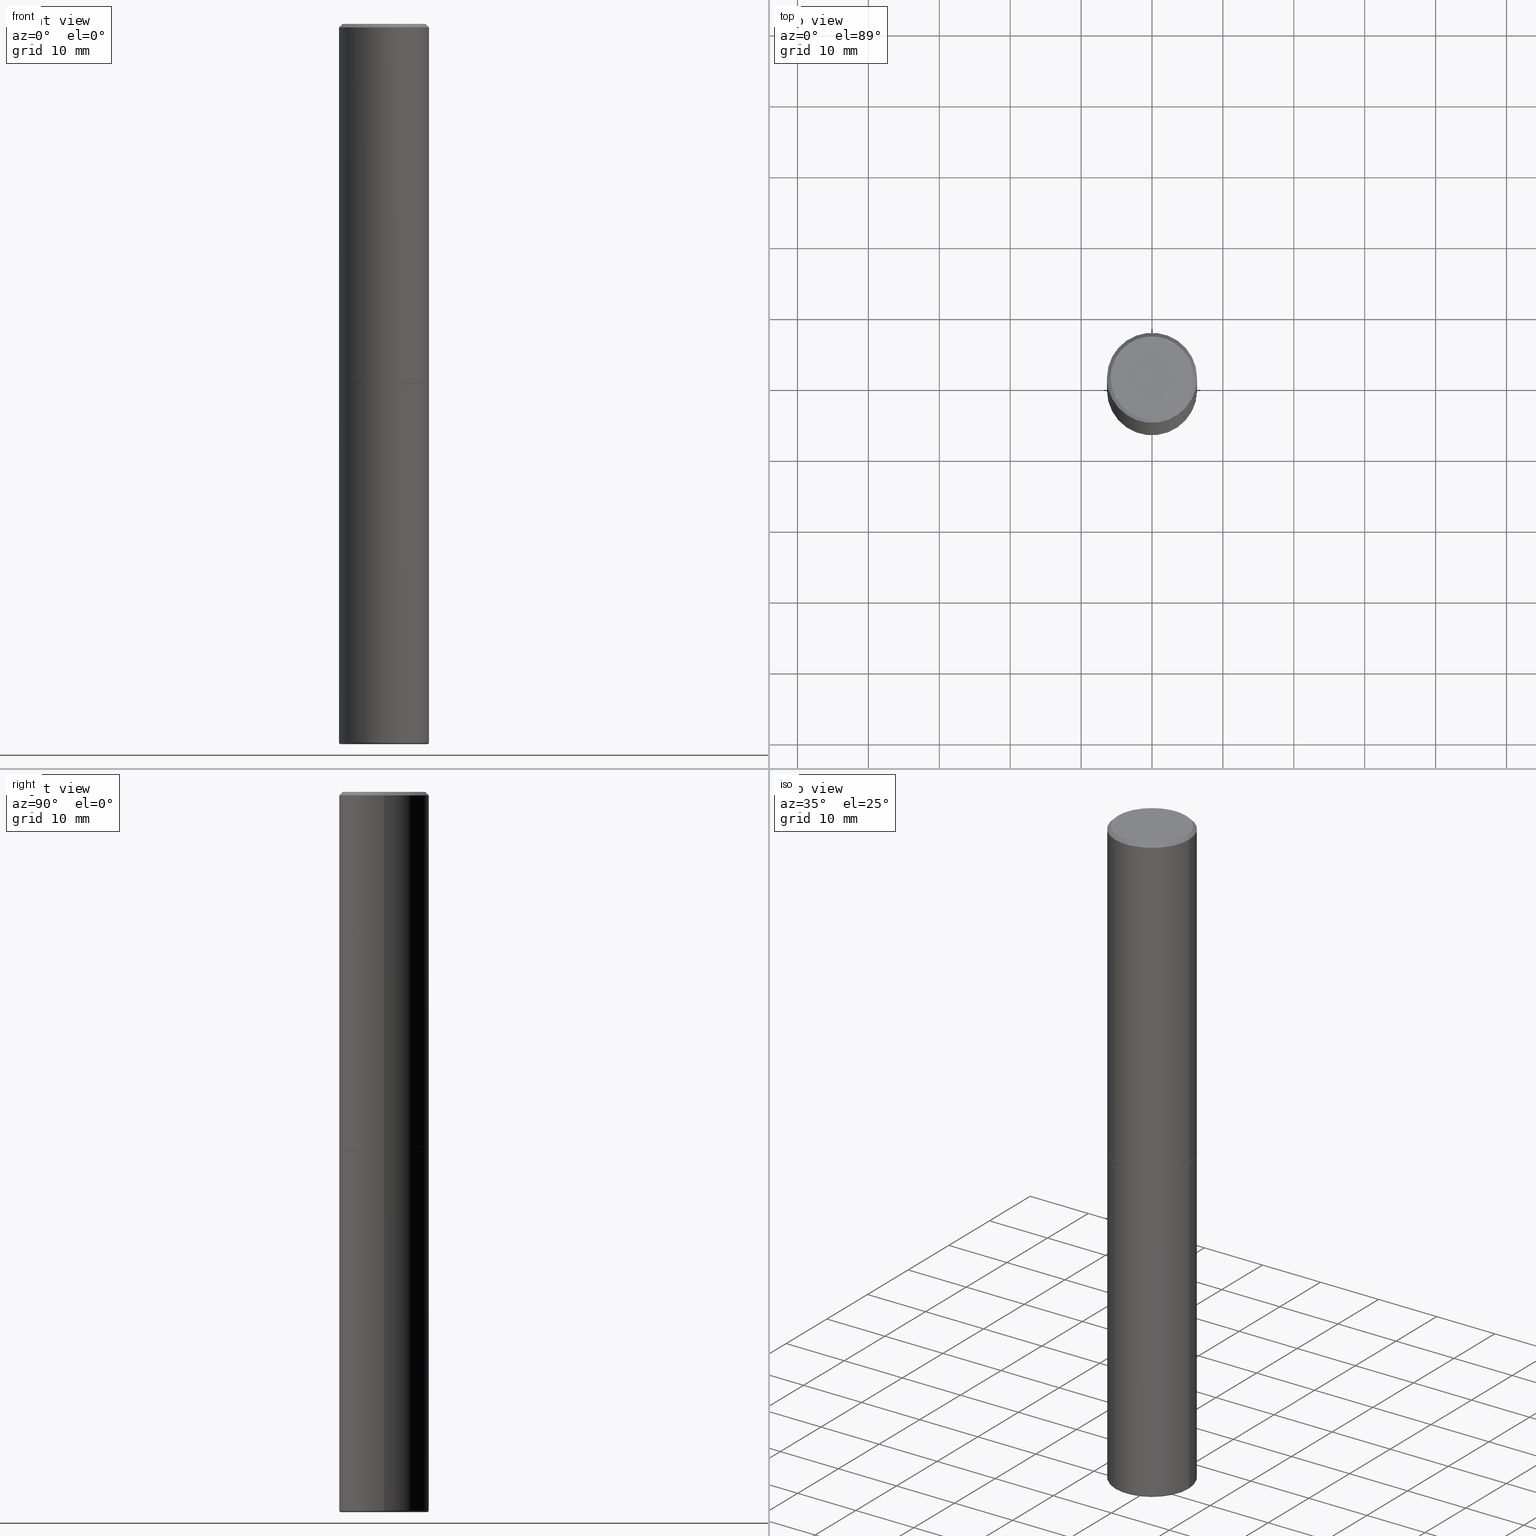
[diagram: canonical four-view strip — front | top / right | iso, engineering-drawing reading convention]
A machine part, canonical four-view strip (front | top / right | iso — engineering-drawing reading convention). The complete STEP part file that produces these views, byte-faithful:
ISO-10303-21;
HEADER;
FILE_DESCRIPTION (( 'STEP AP203' ),
    '1' );
FILE_NAME ('35706.STEP',
    '2022-11-02T20:47:37',
    ( '' ),
    ( '' ),
    'SwSTEP 2.0',
    'SolidWorks 2022',
    '' );
FILE_SCHEMA (( 'CONFIG_CONTROL_DESIGN' ));
ENDSEC;

DATA;
#1 = DIRECTION ( 'NONE',  ( 1.000000000000000000, 0.000000000000000000, 0.000000000000000000 ) ) ;
#2 = CARTESIAN_POINT ( 'NONE',  ( -0.2489999999999999714, -5.208412811295419307E-15, -2.000000000000000000 ) ) ;
#3 = CONICAL_SURFACE ( 'NONE', #29, 0.2132477346450165900, 1.535889741755009918 ) ;
#4 = CIRCLE ( 'NONE', #389, 0.2399127346450165843 ) ;
#5 = ORIENTED_EDGE ( 'NONE', *, *, #139, .F. ) ;
#6 = APPLICATION_PROTOCOL_DEFINITION ( 'international standard', 'config_control_design', 1994, #97 ) ;
#7 = CARTESIAN_POINT ( 'NONE',  ( -1.043851414335219820E-46, 1.490343170380447200E-32, 4.268512490100411279E-18 ) ) ;
#8 = CARTESIAN_POINT ( 'NONE',  ( -0.2400000000000002687, -1.222570930560901851E-14, -3.990000380769358479 ) ) ;
#9 = EDGE_LOOP ( 'NONE', ( #406, #460, #278, #391 ) ) ;
#10 = CALENDAR_DATE ( 2022, 2, 11 ) ;
#11 = DIRECTION ( 'NONE',  ( -1.000000000000000000, 6.982962677686265922E-15, -4.876176775795935793E-29 ) ) ;
#12 = PRODUCT_DEFINITION_FORMATION_WITH_SPECIFIED_SOURCE ( 'ANY', '', #263, .NOT_KNOWN. ) ;
#13 = ADVANCED_FACE ( 'NONE', ( #104 ), #88, .T. ) ;
#14 = DIRECTION ( 'NONE',  ( 7.105427357601001859E-15, 1.000000000000000000, -3.491481338843145583E-15 ) ) ;
#15 = VERTEX_POINT ( 'NONE', #248 ) ;
#16 = CALENDAR_DATE ( 2022, 2, 11 ) ;
#17 = LINE ( 'NONE', #463, #418 ) ;
#18 = ORIENTED_EDGE ( 'NONE', *, *, #337, .T. ) ;
#19 = DIRECTION ( 'NONE',  ( -2.445468806185136597E-29, 3.491481338843145583E-15, 1.000000000000000000 ) ) ;
#20 = EDGE_CURVE ( 'NONE', #15, #245, #261, .T. ) ;
#21 = ORIENTED_EDGE ( 'NONE', *, *, #366, .F. ) ;
#22 = AXIS2_PLACEMENT_3D ( 'NONE', #458, #117, #202 ) ;
#23 = LINE ( 'NONE', #100, #453 ) ;
#24 = EDGE_LOOP ( 'NONE', ( #55, #442 ) ) ;
#25 = DIRECTION ( 'NONE',  ( -2.445468806185136597E-29, 3.491481338843145583E-15, 1.000000000000000000 ) ) ;
#26 = VERTEX_POINT ( 'NONE', #210 ) ;
#27 = CARTESIAN_POINT ( 'NONE',  ( 0.2489999999999999714, -8.721720384430171040E-15, -2.000000000000000000 ) ) ;
#28 = CARTESIAN_POINT ( 'NONE',  ( 4.888492143564087591E-29, -6.979471196347447369E-15, -1.998999999999999888 ) ) ;
#29 = AXIS2_PLACEMENT_3D ( 'NONE', #474, #132, #102 ) ;
#30 = DIRECTION ( 'NONE',  ( -2.445468806185136877E-29, 3.491481338843145188E-15, 1.000000000000000000 ) ) ;
#31 = VECTOR ( 'NONE', #407, 39.37007874015748143 ) ;
#32 = EDGE_CURVE ( 'NONE', #473, #321, #428, .T. ) ;
#33 = ORIENTED_EDGE ( 'NONE', *, *, #147, .T. ) ;
#34 = DIRECTION ( 'NONE',  ( 1.000000000000000000, -6.982962677686236734E-15, 0.000000000000000000 ) ) ;
#35 = CYLINDRICAL_SURFACE ( 'NONE', #106, 0.2499999999999996669 ) ;
#36 = FACE_OUTER_BOUND ( 'NONE', #395, .T. ) ;
#37 = CIRCLE ( 'NONE', #68, 0.2499999999999993061 ) ;
#38 = APPROVAL_ROLE ( '' ) ;
#39 = CARTESIAN_POINT ( 'NONE',  ( 4.890937612370273194E-29, -6.982962677686291165E-15, -2.000000000000000000 ) ) ;
#40 = CARTESIAN_POINT ( 'NONE',  ( -0.2500000000000000000, -1.748293572161900530E-15, -1.998999999999999888 ) ) ;
#41 = LINE ( 'NONE', #422, #191 ) ;
#42 = VECTOR ( 'NONE', #368, 39.37007874015748143 ) ;
#43 = PERSON_AND_ORGANIZATION_ROLE ( 'creator' ) ;
#44 = EDGE_CURVE ( 'NONE', #201, #243, #352, .T. ) ;
#45 = PERSON_AND_ORGANIZATION ( #479, #75 ) ;
#46 = CARTESIAN_POINT ( 'NONE',  ( 0.2500000000000000555, -1.567675254085482873E-14, -3.990000380769358479 ) ) ;
#47 = CONICAL_SURFACE ( 'NONE', #110, 0.2399127346450165843, 1.562069680534929894 ) ;
#48 = CIRCLE ( 'NONE', #280, 0.2489999999999999714 ) ;
#49 = ORIENTED_EDGE ( 'NONE', *, *, #258, .T. ) ;
#50 = CALENDAR_DATE ( 2022, 2, 11 ) ;
#51 = EDGE_LOOP ( 'NONE', ( #155, #208, #171, #457 ) ) ;
#52 = APPROVAL_STATUS ( 'not_yet_approved' ) ;
#53 = DIRECTION ( 'NONE',  ( -2.445468806185136597E-29, 3.491481338843145583E-15, 1.000000000000000000 ) ) ;
#54 = APPROVAL ( #384, 'UNSPECIFIED' ) ;
#55 = ORIENTED_EDGE ( 'NONE', *, *, #148, .T. ) ;
#56 = DIRECTION ( 'NONE',  ( 1.000000000000000000, -6.982962677686265922E-15, 0.000000000000000000 ) ) ;
#57 = VERTEX_POINT ( 'NONE', #357 ) ;
#58 = ORIENTED_EDGE ( 'NONE', *, *, #224, .T. ) ;
#59 = TOROIDAL_SURFACE ( 'NONE', #481, 0.2400000000000002687, 0.009999999999999845818 ) ;
#60 = VECTOR ( 'NONE', #448, 39.37007874015748854 ) ;
#61 = CARTESIAN_POINT ( 'NONE',  ( 0.2399127346450165843, -1.561184619104461252E-14, -4.000000000000000000 ) ) ;
#62 = UNCERTAINTY_MEASURE_WITH_UNIT (LENGTH_MEASURE( 1.000000000000000082E-05 ), #264, 'distance_accuracy_value', 'NONE');
#63 = ADVANCED_FACE ( 'NONE', ( #81 ), #87, .F. ) ;
#64 = VERTEX_POINT ( 'NONE', #383 ) ;
#65 = ADVANCED_FACE ( 'NONE', ( #305 ), #59, .T. ) ;
#66 = LINE ( 'NONE', #61, #196 ) ;
#67 = ORIENTED_EDGE ( 'NONE', *, *, #377, .T. ) ;
#68 = AXIS2_PLACEMENT_3D ( 'NONE', #482, #137, #136 ) ;
#69 = DIRECTION ( 'NONE',  ( 1.000000000000000000, -6.982962677686266711E-15, 4.883557194083113462E-29 ) ) ;
#70 = VERTEX_POINT ( 'NONE', #461 ) ;
#71 = FACE_OUTER_BOUND ( 'NONE', #317, .T. ) ;
#72 = DIRECTION ( 'NONE',  ( -0.9993908270190957621, 6.856857904024556470E-15, -0.03489949670250108021 ) ) ;
#73 = CARTESIAN_POINT ( 'NONE',  ( 1.745740669421615193E-15, 0.2499999999999930056, -2.000000000000000888 ) ) ;
#74 = AXIS2_PLACEMENT_3D ( 'NONE', #425, #229, #154 ) ;
#75 = ORGANIZATION ( 'UNSPECIFIED', 'UNSPECIFIED', '' ) ;
#76 = EDGE_CURVE ( 'NONE', #435, #201, #408, .T. ) ;
#77 =( NAMED_UNIT ( * ) PLANE_ANGLE_UNIT ( ) SI_UNIT ( $, .RADIAN. ) );
#78 = DIRECTION ( 'NONE',  ( -2.445468806185136597E-29, 3.491481338843145583E-15, 1.000000000000000000 ) ) ;
#79 = CIRCLE ( 'NONE', #459, 0.2132477346450165900 ) ;
#80 = DATE_AND_TIME ( #421, #207 ) ;
#81 = FACE_OUTER_BOUND ( 'NONE', #24, .T. ) ;
#82 = ADVANCED_FACE ( 'NONE', ( #390 ), #119, .T. ) ;
#83 = CC_DESIGN_DATE_AND_TIME_ASSIGNMENT ( #116, #230, ( #358 ) ) ;
#84 = ORIENTED_EDGE ( 'NONE', *, *, #173, .F. ) ;
#85 = PERSON_AND_ORGANIZATION ( #479, #75 ) ;
#86 = APPLICATION_CONTEXT ( 'configuration controlled 3d designs of mechanical parts and assemblies' ) ;
#87 = PLANE ( 'NONE',  #438 ) ;
#88 = CONICAL_SURFACE ( 'NONE', #369, 0.2489999999999999714, 0.7853981633974141952 ) ;
#89 = CC_DESIGN_APPROVAL ( #282, ( #358 ) ) ;
#90 = EDGE_LOOP ( 'NONE', ( #306, #238, #455 ) ) ;
#91 = PERSON_AND_ORGANIZATION ( #479, #75 ) ;
#92 = EDGE_LOOP ( 'NONE', ( #402, #58, #128, #335 ) ) ;
#93 = CYLINDRICAL_SURFACE ( 'NONE', #135, 0.2499999999999996669 ) ;
#94 = ORIENTED_EDGE ( 'NONE', *, *, #199, .F. ) ;
#95 = DIRECTION ( 'NONE',  ( 1.000000000000000000, -6.982962677686269077E-15, 0.000000000000000000 ) ) ;
#96 = ORIENTED_EDGE ( 'NONE', *, *, #234, .T. ) ;
#97 = APPLICATION_CONTEXT ( 'configuration controlled 3d designs of mechanical parts and assemblies' ) ;
#98 = VERTEX_POINT ( 'NONE', #46 ) ;
#99 = EDGE_CURVE ( 'NONE', #197, #473, #41, .T. ) ;
#100 = CARTESIAN_POINT ( 'NONE',  ( 0.2500000000000000000, -1.745740669421566678E-15, 1.219044193948983948E-29 ) ) ;
#101 = ORIENTED_EDGE ( 'NONE', *, *, #427, .T. ) ;
#102 = DIRECTION ( 'NONE',  ( -1.000000000000000000, 6.982962677686265922E-15, 0.000000000000000000 ) ) ;
#103 = ADVANCED_BREP_SHAPE_REPRESENTATION ( '35706', ( #187, #190, #167 ), #340 ) ;
#104 = FACE_OUTER_BOUND ( 'NONE', #242, .T. ) ;
#105 = CARTESIAN_POINT ( 'NONE',  ( 4.890937612370302936E-31, -6.982962677686332285E-17, -0.02000000000000011838 ) ) ;
#106 = AXIS2_PLACEMENT_3D ( 'NONE', #312, #475, #274 ) ;
#107 = FACE_OUTER_BOUND ( 'NONE', #324, .T. ) ;
#108 = DIRECTION ( 'NONE',  ( 2.438088387897960049E-29, -3.491481338843145188E-15, -1.000000000000000000 ) ) ;
#109 = CARTESIAN_POINT ( 'NONE',  ( 0.2499999999999993061, -1.784954126219741456E-15, -0.02000000000000011838 ) ) ;
#110 = AXIS2_PLACEMENT_3D ( 'NONE', #443, #204, #319 ) ;
#111 = PRODUCT_DEFINITION_SHAPE ( 'NONE', 'NONE',  #358 ) ;
#112 = AXIS2_PLACEMENT_3D ( 'NONE', #492, #341, #218 ) ;
#113 = EDGE_CURVE ( 'NONE', #435, #467, #17, .T. ) ;
#114 = CARTESIAN_POINT ( 'NONE',  ( 4.888492143564087591E-29, -6.979471196347447369E-15, -1.998999999999999888 ) ) ;
#115 = ORIENTED_EDGE ( 'NONE', *, *, #258, .F. ) ;
#116 = DATE_AND_TIME ( #10, #228 ) ;
#117 = DIRECTION ( 'NONE',  ( -2.445468806185136597E-29, 3.491481338843145583E-15, 1.000000000000000000 ) ) ;
#118 = CIRCLE ( 'NONE', #353, 0.2299999999999991773 ) ;
#119 = CYLINDRICAL_SURFACE ( 'NONE', #123, 0.2500000000000000000 ) ;
#120 = COORDINATED_UNIVERSAL_TIME_OFFSET ( 5, 0, .BEHIND. ) ;
#121 = ORIENTED_EDGE ( 'NONE', *, *, #20, .T. ) ;
#122 = VECTOR ( 'NONE', #156, 39.37007874015748143 ) ;
#123 = AXIS2_PLACEMENT_3D ( 'NONE', #272, #277, #232 ) ;
#124 = CC_DESIGN_APPROVAL ( #54, ( #12 ) ) ;
#125 = VERTEX_POINT ( 'NONE', #161 ) ;
#126 = APPROVAL_ROLE ( '' ) ;
#127 = CARTESIAN_POINT ( 'NONE',  ( 9.781306159430471629E-29, -1.396511288092772933E-14, -3.999767298070359356 ) ) ;
#128 = ORIENTED_EDGE ( 'NONE', *, *, #291, .T. ) ;
#129 = FACE_OUTER_BOUND ( 'NONE', #251, .T. ) ;
#130 = EDGE_LOOP ( 'NONE', ( #5, #322, #326, #289 ) ) ;
#131 = VERTEX_POINT ( 'NONE', #432 ) ;
#132 = DIRECTION ( 'NONE',  ( 2.445468806185136597E-29, -3.491481338843145583E-15, -1.000000000000000000 ) ) ;
#133 = EDGE_CURVE ( 'NONE', #321, #473, #288, .T. ) ;
#134 = PRODUCT_RELATED_PRODUCT_CATEGORY ( 'detail', '', ( #263 ) ) ;
#135 = AXIS2_PLACEMENT_3D ( 'NONE', #241, #292, #394 ) ;
#136 = DIRECTION ( 'NONE',  ( 1.000000000000000000, -6.982962677686267499E-15, 0.000000000000000000 ) ) ;
#137 = DIRECTION ( 'NONE',  ( -2.445468806185136597E-29, 3.491481338843145583E-15, 1.000000000000000000 ) ) ;
#138 = ORIENTED_EDGE ( 'NONE', *, *, #337, .F. ) ;
#139 = EDGE_CURVE ( 'NONE', #64, #131, #226, .T. ) ;
#140 = DIRECTION ( 'NONE',  ( 1.000000000000000000, -6.982962677686262766E-15, 0.000000000000000000 ) ) ;
#141 = ADVANCED_FACE ( 'NONE', ( #157 ), #151, .F. ) ;
#142 = FACE_OUTER_BOUND ( 'NONE', #284, .T. ) ;
#143 = CONICAL_SURFACE ( 'NONE', #483, 0.2132477346450165900, 1.535889741755009918 ) ;
#144 = MECHANICAL_CONTEXT ( 'NONE', #86, 'mechanical' ) ;
#145 = DIRECTION ( 'NONE',  ( -1.000000000000000000, 6.982962677686265922E-15, -4.876176775795935793E-29 ) ) ;
#146 = CARTESIAN_POINT ( 'NONE',  ( 0.2499999999999999722, -8.725211865769014047E-15, -1.998999999999999888 ) ) ;
#147 = EDGE_CURVE ( 'NONE', #243, #467, #381, .T. ) ;
#148 = EDGE_CURVE ( 'NONE', #201, #435, #118, .T. ) ;
#149 = AXIS2_PLACEMENT_3D ( 'NONE', #367, #409, #220 ) ;
#150 = CARTESIAN_POINT ( 'NONE',  ( 9.781306159430471629E-29, -1.396511288092772933E-14, -3.999767298070359356 ) ) ;
#151 = CONICAL_SURFACE ( 'NONE', #74, 0.2399127346450165843, 1.562069680534929894 ) ;
#152 = LOCAL_TIME ( 16, 47, 37.00000000000000000, #120 ) ;
#153 = DIRECTION ( 'NONE',  ( -1.000000000000000000, 7.105427357601025525E-15, 0.000000000000000000 ) ) ;
#154 = DIRECTION ( 'NONE',  ( -1.000000000000000000, 6.982962677686262766E-15, 0.000000000000000000 ) ) ;
#155 = ORIENTED_EDGE ( 'NONE', *, *, #427, .F. ) ;
#156 = DIRECTION ( 'NONE',  ( -0.7071067811865475727, 2.468850131082257455E-15, -0.7071067811865474617 ) ) ;
#157 = FACE_OUTER_BOUND ( 'NONE', #314, .T. ) ;
#158 = EDGE_CURVE ( 'NONE', #245, #15, #468, .T. ) ;
#159 = ORIENTED_EDGE ( 'NONE', *, *, #32, .T. ) ;
#160 = SECURITY_CLASSIFICATION_LEVEL ( 'unclassified' ) ;
#161 = CARTESIAN_POINT ( 'NONE',  ( -0.2132477346450165900, -1.247601190880043386E-14, -3.999767298070359356 ) ) ;
#162 = ORIENTED_EDGE ( 'NONE', *, *, #219, .T. ) ;
#163 = CALENDAR_DATE ( 2022, 2, 11 ) ;
#164 = CARTESIAN_POINT ( 'NONE',  ( -0.2299999999999991773, 1.640996229256267194E-15, 4.268512490089056766E-18 ) ) ;
#165 = DIRECTION ( 'NONE',  ( -2.445468806185136597E-29, 3.491481338843145583E-15, 1.000000000000000000 ) ) ;
#166 = AXIS2_PLACEMENT_3D ( 'NONE', #364, #19, #95 ) ;
#167 = AXIS2_PLACEMENT_3D ( 'NONE', #379, #346, #1 ) ;
#168 = ORIENTED_EDGE ( 'NONE', *, *, #139, .T. ) ;
#169 = APPROVAL_DATE_TIME ( #198, #54 ) ;
#170 = DIRECTION ( 'NONE',  ( -2.445468806185136877E-29, 3.491481338843145188E-15, 1.000000000000000000 ) ) ;
#171 = ORIENTED_EDGE ( 'NONE', *, *, #99, .T. ) ;
#172 = ADVANCED_FACE ( 'NONE', ( #129 ), #47, .F. ) ;
#173 = EDGE_CURVE ( 'NONE', #26, #57, #66, .T. ) ;
#174 = CYLINDRICAL_SURFACE ( 'NONE', #331, 0.2500000000000000000 ) ;
#175 = DESIGN_CONTEXT ( 'detailed design', #97, 'design' ) ;
#176 = CARTESIAN_POINT ( 'NONE',  ( -1.043851414335219820E-46, 1.490343170380447200E-32, 4.268512490100411279E-18 ) ) ;
#177 = ORIENTED_EDGE ( 'NONE', *, *, #484, .F. ) ;
#178 = AXIS2_PLACEMENT_3D ( 'NONE', #441, #478, #56 ) ;
#179 = CARTESIAN_POINT ( 'NONE',  ( -0.2499999999999993061, 1.675911042644698449E-15, -0.02000000000000011838 ) ) ;
#180 = ORIENTED_EDGE ( 'NONE', *, *, #113, .T. ) ;
#181 = CARTESIAN_POINT ( 'NONE',  ( -0.2399127346450165843, -1.229062368344478385E-14, -4.000000000000000000 ) ) ;
#182 = DIRECTION ( 'NONE',  ( -2.445468806185136597E-29, 3.491481338843145583E-15, 1.000000000000000000 ) ) ;
#183 = VECTOR ( 'NONE', #214, 39.37007874015748143 ) ;
#184 = CARTESIAN_POINT ( 'NONE',  ( 0.2299999999999991773, -1.681434332853594081E-15, 4.268512490111905999E-18 ) ) ;
#185 = EDGE_CURVE ( 'NONE', #473, #467, #250, .T. ) ;
#186 = DIRECTION ( 'NONE',  ( -1.000000000000000000, 6.982962677686267499E-15, 0.000000000000000000 ) ) ;
#187 = MANIFOLD_SOLID_BREP ( 'Body-Move/Copy2[1]', #287 ) ;
#188 = CARTESIAN_POINT ( 'NONE',  ( 9.781875224740546387E-29, -1.396592535537258233E-14, -4.000000000000000000 ) ) ;
#189 = PERSON_AND_ORGANIZATION ( #479, #75 ) ;
#190 = MANIFOLD_SOLID_BREP ( 'Body-Move/Copy2[2]', #329 ) ;
#191 = VECTOR ( 'NONE', #456, 39.37007874015748854 ) ;
#192 = TOROIDAL_SURFACE ( 'NONE', #301, 0.2400000000000002687, 0.009999999999999845818 ) ;
#193 = EDGE_CURVE ( 'NONE', #57, #64, #254, .T. ) ;
#194 = ORIENTED_EDGE ( 'NONE', *, *, #219, .F. ) ;
#195 = PERSON_AND_ORGANIZATION_ROLE ( 'classification_officer' ) ;
#196 = VECTOR ( 'NONE', #439, 39.37007874015748854 ) ;
#197 = VERTEX_POINT ( 'NONE', #27 ) ;
#198 = DATE_AND_TIME ( #16, #152 ) ;
#199 = EDGE_CURVE ( 'NONE', #98, #131, #206, .T. ) ;
#200 = CARTESIAN_POINT ( 'NONE',  ( -0.2499999999999993061, 1.675911042644698449E-15, -0.02000000000000011838 ) ) ;
#201 = VERTEX_POINT ( 'NONE', #164 ) ;
#202 = DIRECTION ( 'NONE',  ( 1.000000000000000000, -6.982962677686267499E-15, 0.000000000000000000 ) ) ;
#203 = ORIENTED_EDGE ( 'NONE', *, *, #148, .F. ) ;
#204 = DIRECTION ( 'NONE',  ( 2.445468806185136597E-29, -3.491481338843145583E-15, -1.000000000000000000 ) ) ;
#205 = DIRECTION ( 'NONE',  ( 1.000000000000000000, -6.982962677686267499E-15, 0.000000000000000000 ) ) ;
#206 = CIRCLE ( 'NONE', #166, 0.2500000000000000555 ) ;
#207 = LOCAL_TIME ( 16, 47, 37.00000000000000000, #392 ) ;
#208 = ORIENTED_EDGE ( 'NONE', *, *, #400, .T. ) ;
#209 = DIRECTION ( 'NONE',  ( 1.000000000000000000, -6.982962677686267499E-15, 4.876225828469326258E-29 ) ) ;
#210 = CARTESIAN_POINT ( 'NONE',  ( 0.2132477346450165900, -1.542809853748918062E-14, -3.999767298070359356 ) ) ;
#211 = LINE ( 'NONE', #471, #183 ) ;
#212 = ORIENTED_EDGE ( 'NONE', *, *, #275, .T. ) ;
#213 = EDGE_CURVE ( 'NONE', #70, #26, #211, .T. ) ;
#214 = DIRECTION ( 'NONE',  ( 0.9993908270190957621, -6.978169709227541488E-15, -0.03489949670250108021 ) ) ;
#215 = ORIENTED_EDGE ( 'NONE', *, *, #185, .F. ) ;
#216 = AXIS2_PLACEMENT_3D ( 'NONE', #28, #165, #205 ) ;
#217 = APPROVAL_PERSON_ORGANIZATION ( #271, #54, #240 ) ;
#218 = DIRECTION ( 'NONE',  ( 1.000000000000000000, -6.982962677686265922E-15, 4.876176775795935793E-29 ) ) ;
#219 = EDGE_CURVE ( 'NONE', #321, #243, #290, .T. ) ;
#220 = DIRECTION ( 'NONE',  ( 1.000000000000000000, -6.982962677686267499E-15, 0.000000000000000000 ) ) ;
#221 = FACE_OUTER_BOUND ( 'NONE', #246, .T. ) ;
#222 =( NAMED_UNIT ( * ) SI_UNIT ( $, .STERADIAN. ) SOLID_ANGLE_UNIT ( ) );
#223 = DIRECTION ( 'NONE',  ( 1.000000000000000000, -6.982962677686267499E-15, 0.000000000000000000 ) ) ;
#224 = EDGE_CURVE ( 'NONE', #131, #98, #445, .T. ) ;
#225 = CC_DESIGN_PERSON_AND_ORGANIZATION_ASSIGNMENT ( #85, #276, ( #12 ) ) ;
#226 = CIRCLE ( 'NONE', #370, 0.009999999999999859696 ) ;
#227 = PLANE ( 'NONE',  #300 ) ;
#228 = LOCAL_TIME ( 16, 47, 37.00000000000000000, #356 ) ;
#229 = DIRECTION ( 'NONE',  ( 2.445468806185136597E-29, -3.491481338843145583E-15, -1.000000000000000000 ) ) ;
#230 = DATE_TIME_ROLE ( 'creation_date' ) ;
#231 = DIRECTION ( 'NONE',  ( -2.445468806185136597E-29, 3.491481338843145583E-15, 1.000000000000000000 ) ) ;
#232 = DIRECTION ( 'NONE',  ( 1.000000000000000000, -6.982962677686266711E-15, 4.876176775795935793E-29 ) ) ;
#233 = ORIENTED_EDGE ( 'NONE', *, *, #147, .F. ) ;
#234 = EDGE_CURVE ( 'NONE', #125, #26, #79, .T. ) ;
#235 = CC_DESIGN_PERSON_AND_ORGANIZATION_ASSIGNMENT ( #91, #195, ( #488 ) ) ;
#236 = APPROVAL_DATE_TIME ( #80, #282 ) ;
#237 = CONICAL_SURFACE ( 'NONE', #420, 0.2499999999999993061, 0.7853981633974483900 ) ;
#238 = ORIENTED_EDGE ( 'NONE', *, *, #366, .T. ) ;
#239 = CARTESIAN_POINT ( 'NONE',  ( 9.757421467838283463E-29, -1.393101187143326047E-14, -3.990000380769358479 ) ) ;
#240 = APPROVAL_ROLE ( '' ) ;
#241 = CARTESIAN_POINT ( 'NONE',  ( 0.000000000000000000, 0.000000000000000000, 0.000000000000000000 ) ) ;
#242 = EDGE_LOOP ( 'NONE', ( #67, #101, #345, #293 ) ) ;
#243 = VERTEX_POINT ( 'NONE', #179 ) ;
#244 = DIRECTION ( 'NONE',  ( 1.000000000000000000, -6.982962677686269077E-15, 0.000000000000000000 ) ) ;
#245 = VERTEX_POINT ( 'NONE', #403 ) ;
#246 = EDGE_LOOP ( 'NONE', ( #21, #359, #373 ) ) ;
#247 = DIRECTION ( 'NONE',  ( -2.445468806185136597E-29, 3.491481338843145583E-15, 1.000000000000000000 ) ) ;
#248 = CARTESIAN_POINT ( 'NONE',  ( 0.2499999999999999722, -8.728703347107857054E-15, -2.000000000000000000 ) ) ;
#249 = ADVANCED_FACE ( 'NONE', ( #397 ), #174, .T. ) ;
#250 = LINE ( 'NONE', #327, #386 ) ;
#251 = EDGE_LOOP ( 'NONE', ( #96, #472, #177, #138 ) ) ;
#252 = CARTESIAN_POINT ( 'NONE',  ( -0.2132477346450165900, -1.247601190880043386E-14, -3.999767298070359356 ) ) ;
#253 = DIRECTION ( 'NONE',  ( -2.445468806185136597E-29, 3.491481338843145583E-15, 1.000000000000000000 ) ) ;
#254 = CIRCLE ( 'NONE', #362, 0.2399127346450165843 ) ;
#255 = CIRCLE ( 'NONE', #410, 0.2489999999999999714 ) ;
#256 = DIRECTION ( 'NONE',  ( 2.445468806185136597E-29, -3.491481338843145583E-15, -1.000000000000000000 ) ) ;
#257 = DIRECTION ( 'NONE',  ( -2.445468806185136597E-29, 3.491481338843145583E-15, 1.000000000000000000 ) ) ;
#258 = EDGE_CURVE ( 'NONE', #467, #243, #37, .T. ) ;
#259 = APPROVAL ( #52, 'UNSPECIFIED' ) ;
#260 = CARTESIAN_POINT ( 'NONE',  ( 0.2400000000000002687, -1.560692291407796543E-14, -3.990000380769358479 ) ) ;
#261 = CIRCLE ( 'NONE', #149, 0.2499999999999999722 ) ;
#262 = AXIS2_PLACEMENT_3D ( 'NONE', #239, #247, #244 ) ;
#263 = PRODUCT ( '35706', '35706', '', ( #144 ) ) ;
#264 =( CONVERSION_BASED_UNIT ( 'INCH', #451 ) LENGTH_UNIT ( ) NAMED_UNIT ( #447 ) );
#265 = CARTESIAN_POINT ( 'NONE',  ( 4.890937612370273194E-29, -6.982962677686291165E-15, -2.000000000000000000 ) ) ;
#266 = ORIENTED_EDGE ( 'NONE', *, *, #76, .F. ) ;
#267 = EDGE_LOOP ( 'NONE', ( #159, #162, #115, #215 ) ) ;
#268 = PERSON_AND_ORGANIZATION_ROLE ( 'creator' ) ;
#269 = LOCAL_TIME ( 16, 47, 37.00000000000000000, #387 ) ;
#270 = DIRECTION ( 'NONE',  ( -2.445468806185136597E-29, 3.491481338843145583E-15, 1.000000000000000000 ) ) ;
#271 = PERSON_AND_ORGANIZATION ( #479, #75 ) ;
#272 = CARTESIAN_POINT ( 'NONE',  ( 0.000000000000000000, 0.000000000000000000, 0.000000000000000000 ) ) ;
#273 = ADVANCED_FACE ( 'NONE', ( #323 ), #93, .T. ) ;
#274 = DIRECTION ( 'NONE',  ( 1.000000000000000000, -6.982962677686266711E-15, 4.876176775795935793E-29 ) ) ;
#275 = EDGE_CURVE ( 'NONE', #26, #125, #440, .T. ) ;
#276 = PERSON_AND_ORGANIZATION_ROLE ( 'design_supplier' ) ;
#277 = DIRECTION ( 'NONE',  ( -2.445468806185136597E-29, 3.491481338843145583E-15, 1.000000000000000000 ) ) ;
#278 = ORIENTED_EDGE ( 'NONE', *, *, #20, .F. ) ;
#279 = VECTOR ( 'NONE', #72, 39.37007874015748143 ) ;
#280 = AXIS2_PLACEMENT_3D ( 'NONE', #39, #257, #296 ) ;
#281 = ORIENTED_EDGE ( 'NONE', *, *, #185, .T. ) ;
#282 = APPROVAL ( #297, 'UNSPECIFIED' ) ;
#283 = DIRECTION ( 'NONE',  ( -2.445468806185136597E-29, 3.491481338843145583E-15, 1.000000000000000000 ) ) ;
#284 = EDGE_LOOP ( 'NONE', ( #121, #477 ) ) ;
#285 = CARTESIAN_POINT ( 'NONE',  ( 0.000000000000000000, 0.000000000000000000, 0.000000000000000000 ) ) ;
#286 = DIRECTION ( 'NONE',  ( 1.000000000000000000, -6.982962677686267499E-15, 0.000000000000000000 ) ) ;
#287 = CLOSED_SHELL ( 'NONE', ( #172, #423, #249, #388, #308, #328, #82, #65, #141 ) ) ;
#288 = CIRCLE ( 'NONE', #295, 0.2499999999999999722 ) ;
#289 = ORIENTED_EDGE ( 'NONE', *, *, #224, .F. ) ;
#290 = LINE ( 'NONE', #334, #42 ) ;
#291 = EDGE_CURVE ( 'NONE', #98, #15, #23, .T. ) ;
#292 = DIRECTION ( 'NONE',  ( -2.445468806185136597E-29, 3.491481338843145583E-15, 1.000000000000000000 ) ) ;
#293 = ORIENTED_EDGE ( 'NONE', *, *, #99, .F. ) ;
#294 = FACE_OUTER_BOUND ( 'NONE', #476, .T. ) ;
#295 = AXIS2_PLACEMENT_3D ( 'NONE', #114, #270, #466 ) ;
#296 = DIRECTION ( 'NONE',  ( 1.000000000000000000, -6.982962677686267499E-15, 0.000000000000000000 ) ) ;
#297 = APPROVAL_STATUS ( 'not_yet_approved' ) ;
#298 = CARTESIAN_POINT ( 'NONE',  ( -0.2489999999999999714, -5.213711265643641709E-15, -2.000000000000000000 ) ) ;
#299 = FACE_OUTER_BOUND ( 'NONE', #51, .T. ) ;
#300 = AXIS2_PLACEMENT_3D ( 'NONE', #73, #108, #145 ) ;
#301 = AXIS2_PLACEMENT_3D ( 'NONE', #336, #78, #69 ) ;
#302 = APPLICATION_PROTOCOL_DEFINITION ( 'international standard', 'config_control_design', 1994, #86 ) ;
#303 = LINE ( 'NONE', #416, #31 ) ;
#304 =( LENGTH_UNIT ( ) NAMED_UNIT ( * ) SI_UNIT ( $, .METRE. ) );
#305 = FACE_OUTER_BOUND ( 'NONE', #130, .T. ) ;
#306 = ORIENTED_EDGE ( 'NONE', *, *, #213, .F. ) ;
#307 = PERSON_AND_ORGANIZATION ( #479, #75 ) ;
#308 = ADVANCED_FACE ( 'NONE', ( #393 ), #3, .F. ) ;
#309 = CC_DESIGN_PERSON_AND_ORGANIZATION_ASSIGNMENT ( #318, #43, ( #12 ) ) ;
#310 = DIRECTION ( 'NONE',  ( 2.438088387897960049E-29, -3.491481338843145188E-15, -1.000000000000000000 ) ) ;
#311 = DATE_AND_TIME ( #50, #269 ) ;
#312 = CARTESIAN_POINT ( 'NONE',  ( 0.000000000000000000, 0.000000000000000000, 0.000000000000000000 ) ) ;
#313 = CARTESIAN_POINT ( 'NONE',  ( 1.606081415867835348E-15, 0.2299999999999991773, -8.009064516888704189E-16 ) ) ;
#314 = EDGE_LOOP ( 'NONE', ( #84, #212, #18, #426 ) ) ;
#315 = DATE_TIME_ROLE ( 'classification_date' ) ;
#316 = DIRECTION ( 'NONE',  ( 0.7071067811865475727, -7.319954787623256045E-15, -0.7071067811865474617 ) ) ;
#317 = EDGE_LOOP ( 'NONE', ( #194, #433, #281, #233 ) ) ;
#318 = PERSON_AND_ORGANIZATION ( #479, #75 ) ;
#319 = DIRECTION ( 'NONE',  ( -1.000000000000000000, 6.982962677686262766E-15, 0.000000000000000000 ) ) ;
#320 = CIRCLE ( 'NONE', #454, 0.009999999999999859696 ) ;
#321 = VERTEX_POINT ( 'NONE', #40 ) ;
#322 = ORIENTED_EDGE ( 'NONE', *, *, #484, .T. ) ;
#323 = FACE_OUTER_BOUND ( 'NONE', #267, .T. ) ;
#324 = EDGE_LOOP ( 'NONE', ( #371, #486 ) ) ;
#325 = DIRECTION ( 'NONE',  ( -2.445468806185136597E-29, 3.491481338843145583E-15, 1.000000000000000000 ) ) ;
#326 = ORIENTED_EDGE ( 'NONE', *, *, #464, .T. ) ;
#327 = CARTESIAN_POINT ( 'NONE',  ( 0.2499999999999996669, -1.745740669421564311E-15, 1.219044193948982267E-29 ) ) ;
#328 = ADVANCED_FACE ( 'NONE', ( #142 ), #227, .F. ) ;
#329 = CLOSED_SHELL ( 'NONE', ( #13, #273, #489, #415, #490, #350, #450, #63 ) ) ;
#330 = CC_DESIGN_DATE_AND_TIME_ASSIGNMENT ( #469, #315, ( #488 ) ) ;
#331 = AXIS2_PLACEMENT_3D ( 'NONE', #285, #325, #485 ) ;
#332 = EDGE_LOOP ( 'NONE', ( #437, #168, #94, #396 ) ) ;
#333 = AXIS2_PLACEMENT_3D ( 'NONE', #105, #343, #186 ) ;
#334 = CARTESIAN_POINT ( 'NONE',  ( -0.2499999999999996669, 1.776356839400248098E-15, -1.229733772563724764E-29 ) ) ;
#335 = ORIENTED_EDGE ( 'NONE', *, *, #158, .F. ) ;
#336 = CARTESIAN_POINT ( 'NONE',  ( 9.757421467838283463E-29, -1.393101187143326047E-14, -3.990000380769358479 ) ) ;
#337 = EDGE_CURVE ( 'NONE', #125, #64, #376, .T. ) ;
#338 = DIRECTION ( 'NONE',  ( -2.445468806185136597E-29, 3.491481338843145583E-15, 1.000000000000000000 ) ) ;
#339 = AXIS2_PLACEMENT_3D ( 'NONE', #7, #231, #424 ) ;
#340 =( GEOMETRIC_REPRESENTATION_CONTEXT ( 3 ) GLOBAL_UNCERTAINTY_ASSIGNED_CONTEXT ( ( #62 ) ) GLOBAL_UNIT_ASSIGNED_CONTEXT ( ( #264, #77, #222 ) ) REPRESENTATION_CONTEXT ( 'NONE', 'WORKASPACE' ) );
#341 = DIRECTION ( 'NONE',  ( -2.438088387897960049E-29, 3.491481338843145188E-15, 1.000000000000000000 ) ) ;
#342 = PERSON_AND_ORGANIZATION ( #479, #75 ) ;
#343 = DIRECTION ( 'NONE',  ( 2.445468806185136597E-29, -3.491481338843145583E-15, -1.000000000000000000 ) ) ;
#344 = CC_DESIGN_PERSON_AND_ORGANIZATION_ASSIGNMENT ( #189, #349, ( #263 ) ) ;
#345 = ORIENTED_EDGE ( 'NONE', *, *, #32, .F. ) ;
#346 = DIRECTION ( 'NONE',  ( 0.000000000000000000, 0.000000000000000000, 1.000000000000000000 ) ) ;
#347 = DIRECTION ( 'NONE',  ( -0.9999619230641714207, 6.952228252019186602E-15, -0.008726535498369011531 ) ) ;
#348 = APPROVAL_PERSON_ORGANIZATION ( #342, #282, #38 ) ;
#349 = PERSON_AND_ORGANIZATION_ROLE ( 'design_owner' ) ;
#350 = ADVANCED_FACE ( 'NONE', ( #299 ), #363, .T. ) ;
#351 = APPROVAL_DATE_TIME ( #311, #259 ) ;
#352 = LINE ( 'NONE', #200, #122 ) ;
#353 = AXIS2_PLACEMENT_3D ( 'NONE', #176, #25, #209 ) ;
#354 = CONICAL_SURFACE ( 'NONE', #333, 0.2499999999999993061, 0.7853981633974483900 ) ;
#355 = DIRECTION ( 'NONE',  ( -2.445468806185136597E-29, 3.491481338843145583E-15, 1.000000000000000000 ) ) ;
#356 = COORDINATED_UNIVERSAL_TIME_OFFSET ( 5, 0, .BEHIND. ) ;
#357 = CARTESIAN_POINT ( 'NONE',  ( 0.2399127346450165843, -1.564122702730038081E-14, -4.000000000000000000 ) ) ;
#358 = PRODUCT_DEFINITION ( 'UNKNOWN', '', #12, #175 ) ;
#359 = ORIENTED_EDGE ( 'NONE', *, *, #213, .T. ) ;
#360 = CARTESIAN_POINT ( 'NONE',  ( 4.890937612370273194E-29, -6.982962677686291165E-15, -2.000000000000000000 ) ) ;
#361 = DIRECTION ( 'NONE',  ( 1.000000000000000000, -6.982962677686262766E-15, 0.000000000000000000 ) ) ;
#362 = AXIS2_PLACEMENT_3D ( 'NONE', #405, #53, #361 ) ;
#363 = CONICAL_SURFACE ( 'NONE', #470, 0.2489999999999999714, 0.7853981633974141952 ) ;
#364 = CARTESIAN_POINT ( 'NONE',  ( 9.757421467838283463E-29, -1.393101187143326047E-14, -3.990000380769358479 ) ) ;
#365 = VERTEX_POINT ( 'NONE', #2 ) ;
#366 = EDGE_CURVE ( 'NONE', #70, #125, #452, .T. ) ;
#367 = CARTESIAN_POINT ( 'NONE',  ( 4.890937612370273194E-29, -6.982962677686291165E-15, -2.000000000000000000 ) ) ;
#368 = DIRECTION ( 'NONE',  ( -2.445468806185136877E-29, 3.491481338843145188E-15, 1.000000000000000000 ) ) ;
#369 = AXIS2_PLACEMENT_3D ( 'NONE', #399, #253, #480 ) ;
#370 = AXIS2_PLACEMENT_3D ( 'NONE', #8, #14, #153 ) ;
#371 = ORIENTED_EDGE ( 'NONE', *, *, #377, .F. ) ;
#372 = LINE ( 'NONE', #298, #60 ) ;
#373 = ORIENTED_EDGE ( 'NONE', *, *, #234, .F. ) ;
#374 = CARTESIAN_POINT ( 'NONE',  ( 4.890937612370273194E-29, -6.982962677686291165E-15, -2.000000000000000000 ) ) ;
#375 = DIRECTION ( 'NONE',  ( -1.000000000000000000, 6.982962677686265922E-15, 0.000000000000000000 ) ) ;
#376 = LINE ( 'NONE', #181, #429 ) ;
#377 = EDGE_CURVE ( 'NONE', #197, #365, #48, .T. ) ;
#378 = FACE_OUTER_BOUND ( 'NONE', #332, .T. ) ;
#379 = CARTESIAN_POINT ( 'NONE',  ( 0.000000000000000000, 0.000000000000000000, 0.000000000000000000 ) ) ;
#380 = CARTESIAN_POINT ( 'NONE',  ( 9.757421467838283463E-29, -1.393101187143326047E-14, -3.990000380769358479 ) ) ;
#381 = CIRCLE ( 'NONE', #22, 0.2499999999999993061 ) ;
#382 = APPROVAL_PERSON_ORGANIZATION ( #45, #259, #126 ) ;
#383 = CARTESIAN_POINT ( 'NONE',  ( -0.2399127346450165843, -1.220794893961101042E-14, -4.000000000000000000 ) ) ;
#384 = APPROVAL_STATUS ( 'not_yet_approved' ) ;
#385 = DIRECTION ( 'NONE',  ( 1.000000000000000000, -6.982962677686266711E-15, 4.883557194083113462E-29 ) ) ;
#386 = VECTOR ( 'NONE', #30, 39.37007874015748143 ) ;
#387 = COORDINATED_UNIVERSAL_TIME_OFFSET ( 5, 0, .BEHIND. ) ;
#388 = ADVANCED_FACE ( 'NONE', ( #221 ), #143, .F. ) ;
#389 = AXIS2_PLACEMENT_3D ( 'NONE', #188, #487, #140 ) ;
#390 = FACE_OUTER_BOUND ( 'NONE', #92, .T. ) ;
#391 = ORIENTED_EDGE ( 'NONE', *, *, #291, .F. ) ;
#392 = COORDINATED_UNIVERSAL_TIME_OFFSET ( 5, 0, .BEHIND. ) ;
#393 = FACE_OUTER_BOUND ( 'NONE', #90, .T. ) ;
#394 = DIRECTION ( 'NONE',  ( 1.000000000000000000, -6.982962677686266711E-15, 4.876176775795935793E-29 ) ) ;
#395 = EDGE_LOOP ( 'NONE', ( #404, #203, #419, #33 ) ) ;
#396 = ORIENTED_EDGE ( 'NONE', *, *, #464, .F. ) ;
#397 = FACE_OUTER_BOUND ( 'NONE', #9, .T. ) ;
#398 = AXIS2_PLACEMENT_3D ( 'NONE', #360, #436, #286 ) ;
#399 = CARTESIAN_POINT ( 'NONE',  ( 4.890937612370273194E-29, -6.982962677686291165E-15, -2.000000000000000000 ) ) ;
#400 = EDGE_CURVE ( 'NONE', #365, #197, #255, .T. ) ;
#401 = CC_DESIGN_PERSON_AND_ORGANIZATION_ASSIGNMENT ( #307, #268, ( #358 ) ) ;
#402 = ORIENTED_EDGE ( 'NONE', *, *, #417, .F. ) ;
#403 = CARTESIAN_POINT ( 'NONE',  ( -0.2499999999999999722, -8.680630435159524960E-15, -2.000000000000000000 ) ) ;
#404 = ORIENTED_EDGE ( 'NONE', *, *, #113, .F. ) ;
#405 = CARTESIAN_POINT ( 'NONE',  ( 9.781875224740546387E-29, -1.396592535537258233E-14, -4.000000000000000000 ) ) ;
#406 = ORIENTED_EDGE ( 'NONE', *, *, #199, .T. ) ;
#407 = DIRECTION ( 'NONE',  ( -2.445468806185136877E-29, 3.491481338843145188E-15, 1.000000000000000000 ) ) ;
#408 = CIRCLE ( 'NONE', #339, 0.2299999999999991773 ) ;
#409 = DIRECTION ( 'NONE',  ( -2.445468806185136597E-29, 3.491481338843145583E-15, 1.000000000000000000 ) ) ;
#410 = AXIS2_PLACEMENT_3D ( 'NONE', #374, #182, #412 ) ;
#411 = DIRECTION ( 'NONE',  ( -1.000000000000000000, 6.982962677686267499E-15, 0.000000000000000000 ) ) ;
#412 = DIRECTION ( 'NONE',  ( 1.000000000000000000, -6.982962677686267499E-15, 0.000000000000000000 ) ) ;
#413 = DIRECTION ( 'NONE',  ( -6.982962677686266711E-15, -1.000000000000000000, 3.491481338843145583E-15 ) ) ;
#414 = CC_DESIGN_APPROVAL ( #259, ( #488 ) ) ;
#415 = ADVANCED_FACE ( 'NONE', ( #36 ), #354, .T. ) ;
#416 = CARTESIAN_POINT ( 'NONE',  ( -0.2500000000000000000, 1.776356839400250465E-15, -1.229733772563726445E-29 ) ) ;
#417 = EDGE_CURVE ( 'NONE', #131, #245, #303, .T. ) ;
#418 = VECTOR ( 'NONE', #316, 39.37007874015748143 ) ;
#419 = ORIENTED_EDGE ( 'NONE', *, *, #44, .T. ) ;
#420 = AXIS2_PLACEMENT_3D ( 'NONE', #444, #256, #411 ) ;
#421 = CALENDAR_DATE ( 2022, 2, 11 ) ;
#422 = CARTESIAN_POINT ( 'NONE',  ( 0.2489999999999999714, -8.721720384430171040E-15, -2.000000000000000000 ) ) ;
#423 = ADVANCED_FACE ( 'NONE', ( #378 ), #192, .T. ) ;
#424 = DIRECTION ( 'NONE',  ( 1.000000000000000000, -6.982962677686267499E-15, 4.876225828469326258E-29 ) ) ;
#425 = CARTESIAN_POINT ( 'NONE',  ( 9.781875224740546387E-29, -1.396592535537258233E-14, -4.000000000000000000 ) ) ;
#426 = ORIENTED_EDGE ( 'NONE', *, *, #193, .F. ) ;
#427 = EDGE_CURVE ( 'NONE', #365, #321, #372, .T. ) ;
#428 = CIRCLE ( 'NONE', #216, 0.2499999999999999722 ) ;
#429 = VECTOR ( 'NONE', #347, 39.37007874015748854 ) ;
#430 = SHAPE_DEFINITION_REPRESENTATION ( #111, #103 ) ;
#431 = LOCAL_TIME ( 16, 47, 37.00000000000000000, #462 ) ;
#432 = CARTESIAN_POINT ( 'NONE',  ( -0.2500000000000000555, -8.680630435159524960E-15, -3.990000380769358479 ) ) ;
#433 = ORIENTED_EDGE ( 'NONE', *, *, #133, .T. ) ;
#434 = DIRECTION ( 'NONE',  ( 1.000000000000000000, -6.982962677686265922E-15, 0.000000000000000000 ) ) ;
#435 = VERTEX_POINT ( 'NONE', #184 ) ;
#436 = DIRECTION ( 'NONE',  ( -2.445468806185136597E-29, 3.491481338843145583E-15, 1.000000000000000000 ) ) ;
#437 = ORIENTED_EDGE ( 'NONE', *, *, #193, .T. ) ;
#438 = AXIS2_PLACEMENT_3D ( 'NONE', #313, #310, #11 ) ;
#439 = DIRECTION ( 'NONE',  ( 0.9999619230641714207, -6.890705306874825328E-15, -0.008726535498369011531 ) ) ;
#440 = CIRCLE ( 'NONE', #178, 0.2132477346450165900 ) ;
#441 = CARTESIAN_POINT ( 'NONE',  ( 9.781306159430471629E-29, -1.396511288092772933E-14, -3.999767298070359356 ) ) ;
#442 = ORIENTED_EDGE ( 'NONE', *, *, #76, .T. ) ;
#443 = CARTESIAN_POINT ( 'NONE',  ( 9.781875224740546387E-29, -1.396592535537258233E-14, -4.000000000000000000 ) ) ;
#444 = CARTESIAN_POINT ( 'NONE',  ( 4.890937612370302936E-31, -6.982962677686332285E-17, -0.02000000000000011838 ) ) ;
#445 = CIRCLE ( 'NONE', #262, 0.2500000000000000555 ) ;
#446 = CC_DESIGN_SECURITY_CLASSIFICATION ( #488, ( #12 ) ) ;
#447 = DIMENSIONAL_EXPONENTS ( 1.000000000000000000, 0.000000000000000000, 0.000000000000000000, 0.000000000000000000, 0.000000000000000000, 0.000000000000000000, 0.000000000000000000 ) ;
#448 = DIRECTION ( 'NONE',  ( -0.7071067811865232589, 7.493145998870265808E-15, 0.7071067811865715536 ) ) ;
#449 = PLANE ( 'NONE',  #112 ) ;
#450 = ADVANCED_FACE ( 'NONE', ( #107 ), #449, .F. ) ;
#451 = LENGTH_MEASURE_WITH_UNIT ( LENGTH_MEASURE( 0.02539999999999999897 ), #304 );
#452 = LINE ( 'NONE', #252, #279 ) ;
#453 = VECTOR ( 'NONE', #170, 39.37007874015748143 ) ;
#454 = AXIS2_PLACEMENT_3D ( 'NONE', #260, #413, #34 ) ;
#455 = ORIENTED_EDGE ( 'NONE', *, *, #275, .F. ) ;
#456 = DIRECTION ( 'NONE',  ( 0.7071067811865232589, -2.468850131082003836E-15, 0.7071067811865715536 ) ) ;
#457 = ORIENTED_EDGE ( 'NONE', *, *, #133, .F. ) ;
#458 = CARTESIAN_POINT ( 'NONE',  ( 4.890937612370302936E-31, -6.982962677686332285E-17, -0.02000000000000011838 ) ) ;
#459 = AXIS2_PLACEMENT_3D ( 'NONE', #127, #283, #434 ) ;
#460 = ORIENTED_EDGE ( 'NONE', *, *, #417, .T. ) ;
#461 = CARTESIAN_POINT ( 'NONE',  ( 9.761731175449715998E-29, -1.394106611403126447E-14, -3.992320523084183392 ) ) ;
#462 = COORDINATED_UNIVERSAL_TIME_OFFSET ( 5, 0, .BEHIND. ) ;
#463 = CARTESIAN_POINT ( 'NONE',  ( 0.2499999999999993061, -1.784954126219741456E-15, -0.02000000000000011838 ) ) ;
#464 = EDGE_CURVE ( 'NONE', #57, #98, #320, .T. ) ;
#465 = ORIENTED_EDGE ( 'NONE', *, *, #44, .F. ) ;
#466 = DIRECTION ( 'NONE',  ( 1.000000000000000000, -6.982962677686267499E-15, 0.000000000000000000 ) ) ;
#467 = VERTEX_POINT ( 'NONE', #109 ) ;
#468 = CIRCLE ( 'NONE', #398, 0.2499999999999999722 ) ;
#469 = DATE_AND_TIME ( #163, #431 ) ;
#470 = AXIS2_PLACEMENT_3D ( 'NONE', #265, #338, #223 ) ;
#471 = CARTESIAN_POINT ( 'NONE',  ( 0.2132477346450165900, -1.542809853748918062E-14, -3.999767298070359356 ) ) ;
#472 = ORIENTED_EDGE ( 'NONE', *, *, #173, .T. ) ;
#473 = VERTEX_POINT ( 'NONE', #146 ) ;
#474 = CARTESIAN_POINT ( 'NONE',  ( 9.781306159430471629E-29, -1.396511288092772933E-14, -3.999767298070359356 ) ) ;
#475 = DIRECTION ( 'NONE',  ( -2.445468806185136597E-29, 3.491481338843145583E-15, 1.000000000000000000 ) ) ;
#476 = EDGE_LOOP ( 'NONE', ( #266, #180, #49, #465 ) ) ;
#477 = ORIENTED_EDGE ( 'NONE', *, *, #158, .T. ) ;
#478 = DIRECTION ( 'NONE',  ( -2.445468806185136597E-29, 3.491481338843145583E-15, 1.000000000000000000 ) ) ;
#479 = PERSON ( 'UNSPECIFIED', 'UNSPECIFIED', 'UNSPECIFIED', ('UNSPECIFIED'), ('UNSPECIFIED'), ('UNSPECIFIED') ) ;
#480 = DIRECTION ( 'NONE',  ( 1.000000000000000000, -6.982962677686267499E-15, 0.000000000000000000 ) ) ;
#481 = AXIS2_PLACEMENT_3D ( 'NONE', #380, #355, #385 ) ;
#482 = CARTESIAN_POINT ( 'NONE',  ( 4.890937612370302936E-31, -6.982962677686332285E-17, -0.02000000000000011838 ) ) ;
#483 = AXIS2_PLACEMENT_3D ( 'NONE', #150, #491, #375 ) ;
#484 = EDGE_CURVE ( 'NONE', #64, #57, #4, .T. ) ;
#485 = DIRECTION ( 'NONE',  ( 1.000000000000000000, -6.982962677686266711E-15, 4.876176775795935793E-29 ) ) ;
#486 = ORIENTED_EDGE ( 'NONE', *, *, #400, .F. ) ;
#487 = DIRECTION ( 'NONE',  ( -2.445468806185136597E-29, 3.491481338843145583E-15, 1.000000000000000000 ) ) ;
#488 = SECURITY_CLASSIFICATION ( '', '', #160 ) ;
#489 = ADVANCED_FACE ( 'NONE', ( #294 ), #237, .T. ) ;
#490 = ADVANCED_FACE ( 'NONE', ( #71 ), #35, .T. ) ;
#491 = DIRECTION ( 'NONE',  ( 2.445468806185136597E-29, -3.491481338843145583E-15, -1.000000000000000000 ) ) ;
#492 = CARTESIAN_POINT ( 'NONE',  ( 4.890937612370273194E-29, -6.982962677686291165E-15, -2.000000000000000000 ) ) ;
ENDSEC;
END-ISO-10303-21;
